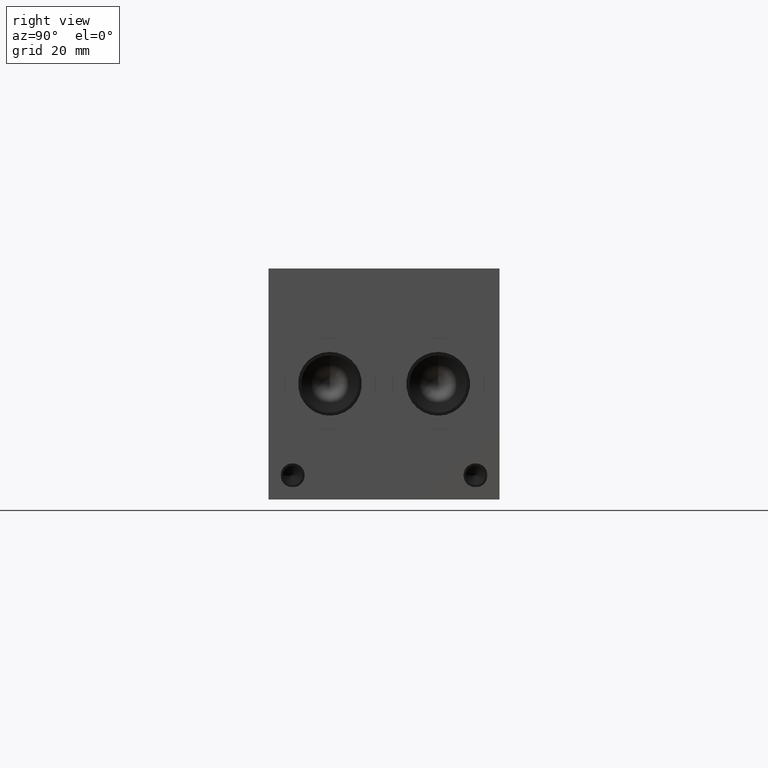
[diagram: clean part render]
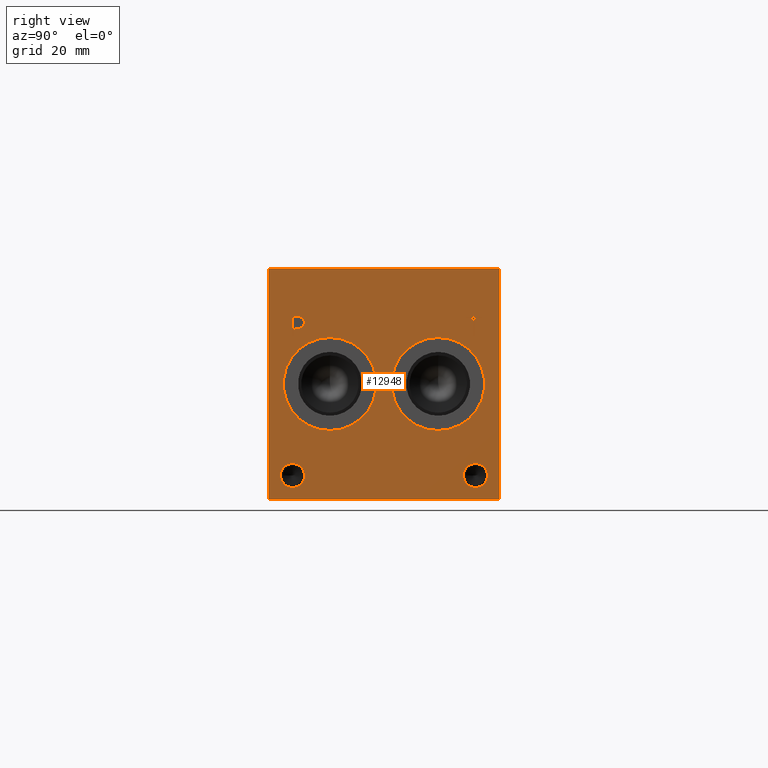
[diagram: same view with one face highlighted and labeled with its STEP entity id]
A machine part, right view. The second image highlights one B-rep face of the part: STEP entity #12948.
In plain terms, the highlighted planar face has unit normal (1, 0, 0).
Its self-contained STEP definition (entity closure, byte-faithful):
#205=CIRCLE('',#13590,15.3416);
#206=CIRCLE('',#13591,15.3416);
#207=CIRCLE('',#13592,3.9624);
#208=CIRCLE('',#13593,3.9624);
#481=FACE_BOUND('',#2197,.T.);
#482=FACE_BOUND('',#2198,.T.);
#483=FACE_BOUND('',#2199,.T.);
#484=FACE_BOUND('',#2200,.T.);
#485=FACE_BOUND('',#2201,.T.);
#486=FACE_BOUND('',#2202,.T.);
#801=B_SPLINE_CURVE_WITH_KNOTS('',2,(#20993,#20994,#20995,#20996),
 .UNSPECIFIED.,.F.,.F.,(3,1,3),(0.,1.,2.),.UNSPECIFIED.);
#803=B_SPLINE_CURVE_WITH_KNOTS('',2,(#21014,#21015,#21016,#21017),
 .UNSPECIFIED.,.F.,.F.,(3,1,3),(0.,1.,2.),.UNSPECIFIED.);
#805=B_SPLINE_CURVE_WITH_KNOTS('',2,(#21063,#21064,#21065,#21066),
 .UNSPECIFIED.,.F.,.F.,(3,1,3),(0.,1.,2.),.UNSPECIFIED.);
#807=B_SPLINE_CURVE_WITH_KNOTS('',2,(#21081,#21082,#21083,#21084),
 .UNSPECIFIED.,.F.,.F.,(3,1,3),(0.,1.,2.),.UNSPECIFIED.);
#1409=FACE_OUTER_BOUND('',#2196,.T.);
#2196=EDGE_LOOP('',(#10538,#10539,#10540,#10541));
#2197=EDGE_LOOP('',(#10542));
#2198=EDGE_LOOP('',(#10543));
#2199=EDGE_LOOP('',(#10544));
#2200=EDGE_LOOP('',(#10545));
#2201=EDGE_LOOP('',(#10546,#10547,#10548,#10549,#10550,#10551,#10552,#10553));
#2202=EDGE_LOOP('',(#10554,#10555,#10556,#10557,#10558,#10559,#10560,#10561,
#10562));
#2899=LINE('',#19417,#4181);
#3559=LINE('',#21026,#4841);
#3562=LINE('',#21032,#4844);
#3565=LINE('',#21038,#4847);
#3568=LINE('',#21044,#4850);
#3571=LINE('',#21050,#4853);
#3575=LINE('',#21092,#4857);
#3576=LINE('',#21094,#4858);
#3577=LINE('',#21095,#4859);
#3578=LINE('',#21106,#4860);
#3579=LINE('',#21108,#4861);
#3580=LINE('',#21110,#4862);
#3581=LINE('',#21112,#4863);
#3582=LINE('',#21114,#4864);
#3583=LINE('',#21116,#4865);
#3584=LINE('',#21118,#4866);
#3585=LINE('',#21119,#4867);
#4181=VECTOR('',#14591,10.);
#4841=VECTOR('',#15765,10.);
#4844=VECTOR('',#15770,10.);
#4847=VECTOR('',#15775,10.);
#4850=VECTOR('',#15780,10.);
#4853=VECTOR('',#15785,10.);
#4857=VECTOR('',#15793,10.);
#4858=VECTOR('',#15794,10.);
#4859=VECTOR('',#15795,10.);
#4860=VECTOR('',#15804,10.);
#4861=VECTOR('',#15805,10.);
#4862=VECTOR('',#15806,10.);
#4863=VECTOR('',#15807,10.);
#4864=VECTOR('',#15808,10.);
#4865=VECTOR('',#15809,10.);
#4866=VECTOR('',#15810,10.);
#4867=VECTOR('',#15811,10.);
#5485=VERTEX_POINT('',#19414);
#5486=VERTEX_POINT('',#19416);
#5948=VERTEX_POINT('',#20991);
#5949=VERTEX_POINT('',#20992);
#5952=VERTEX_POINT('',#21013);
#5954=VERTEX_POINT('',#21025);
#5956=VERTEX_POINT('',#21031);
#5958=VERTEX_POINT('',#21037);
#5960=VERTEX_POINT('',#21043);
#5962=VERTEX_POINT('',#21049);
#5964=VERTEX_POINT('',#21062);
#5966=VERTEX_POINT('',#21091);
#5967=VERTEX_POINT('',#21093);
#5968=VERTEX_POINT('',#21096);
#5969=VERTEX_POINT('',#21098);
#5970=VERTEX_POINT('',#21100);
#5971=VERTEX_POINT('',#21102);
#5972=VERTEX_POINT('',#21104);
#5973=VERTEX_POINT('',#21105);
#5974=VERTEX_POINT('',#21107);
#5975=VERTEX_POINT('',#21109);
#5976=VERTEX_POINT('',#21111);
#5977=VERTEX_POINT('',#21113);
#5978=VERTEX_POINT('',#21115);
#5979=VERTEX_POINT('',#21117);
#6843=EDGE_CURVE('',#5485,#5486,#2899,.T.);
#7532=EDGE_CURVE('',#5948,#5949,#801,.T.);
#7536=EDGE_CURVE('',#5952,#5948,#803,.T.);
#7539=EDGE_CURVE('',#5954,#5952,#3559,.T.);
#7542=EDGE_CURVE('',#5956,#5954,#3562,.T.);
#7545=EDGE_CURVE('',#5958,#5956,#3565,.T.);
#7548=EDGE_CURVE('',#5960,#5958,#3568,.T.);
#7551=EDGE_CURVE('',#5962,#5960,#3571,.T.);
#7554=EDGE_CURVE('',#5964,#5962,#805,.T.);
#7557=EDGE_CURVE('',#5949,#5964,#807,.T.);
#7559=EDGE_CURVE('',#5485,#5966,#3575,.T.);
#7560=EDGE_CURVE('',#5966,#5967,#3576,.T.);
#7561=EDGE_CURVE('',#5486,#5967,#3577,.T.);
#7562=EDGE_CURVE('',#5968,#5968,#205,.T.);
#7563=EDGE_CURVE('',#5969,#5969,#206,.T.);
#7564=EDGE_CURVE('',#5970,#5970,#207,.T.);
#7565=EDGE_CURVE('',#5971,#5971,#208,.T.);
#7566=EDGE_CURVE('',#5972,#5973,#3578,.T.);
#7567=EDGE_CURVE('',#5973,#5974,#3579,.T.);
#7568=EDGE_CURVE('',#5974,#5975,#3580,.T.);
#7569=EDGE_CURVE('',#5975,#5976,#3581,.T.);
#7570=EDGE_CURVE('',#5976,#5977,#3582,.T.);
#7571=EDGE_CURVE('',#5977,#5978,#3583,.T.);
#7572=EDGE_CURVE('',#5978,#5979,#3584,.T.);
#7573=EDGE_CURVE('',#5979,#5972,#3585,.T.);
#10538=ORIENTED_EDGE('',*,*,#7559,.T.);
#10539=ORIENTED_EDGE('',*,*,#7560,.T.);
#10540=ORIENTED_EDGE('',*,*,#7561,.F.);
#10541=ORIENTED_EDGE('',*,*,#6843,.F.);
#10542=ORIENTED_EDGE('',*,*,#7562,.T.);
#10543=ORIENTED_EDGE('',*,*,#7563,.T.);
#10544=ORIENTED_EDGE('',*,*,#7564,.T.);
#10545=ORIENTED_EDGE('',*,*,#7565,.T.);
#10546=ORIENTED_EDGE('',*,*,#7566,.T.);
#10547=ORIENTED_EDGE('',*,*,#7567,.T.);
#10548=ORIENTED_EDGE('',*,*,#7568,.T.);
#10549=ORIENTED_EDGE('',*,*,#7569,.T.);
#10550=ORIENTED_EDGE('',*,*,#7570,.T.);
#10551=ORIENTED_EDGE('',*,*,#7571,.T.);
#10552=ORIENTED_EDGE('',*,*,#7572,.T.);
#10553=ORIENTED_EDGE('',*,*,#7573,.T.);
#10554=ORIENTED_EDGE('',*,*,#7532,.T.);
#10555=ORIENTED_EDGE('',*,*,#7557,.T.);
#10556=ORIENTED_EDGE('',*,*,#7554,.T.);
#10557=ORIENTED_EDGE('',*,*,#7551,.T.);
#10558=ORIENTED_EDGE('',*,*,#7548,.T.);
#10559=ORIENTED_EDGE('',*,*,#7545,.T.);
#10560=ORIENTED_EDGE('',*,*,#7542,.T.);
#10561=ORIENTED_EDGE('',*,*,#7539,.T.);
#10562=ORIENTED_EDGE('',*,*,#7536,.T.);
#11929=PLANE('',#13589);
#12948=ADVANCED_FACE('',(#1409,#481,#482,#483,#484,#485,#486),#11929,.T.);
#13589=AXIS2_PLACEMENT_3D('',#21090,#15791,#15792);
#13590=AXIS2_PLACEMENT_3D('',#21097,#15796,#15797);
#13591=AXIS2_PLACEMENT_3D('',#21099,#15798,#15799);
#13592=AXIS2_PLACEMENT_3D('',#21101,#15800,#15801);
#13593=AXIS2_PLACEMENT_3D('',#21103,#15802,#15803);
#14591=DIRECTION('',(0.,0.,1.));
#15765=DIRECTION('',(0.,1.,0.));
#15770=DIRECTION('',(0.,0.,1.));
#15775=DIRECTION('',(0.,-1.,0.));
#15780=DIRECTION('',(0.,0.,-1.));
#15785=DIRECTION('',(0.,-1.,0.));
#15791=DIRECTION('center_axis',(1.,0.,0.));
#15792=DIRECTION('ref_axis',(0.,1.,0.));
#15793=DIRECTION('',(0.,1.,0.));
#15794=DIRECTION('',(0.,0.,1.));
#15795=DIRECTION('',(0.,1.,0.));
#15796=DIRECTION('center_axis',(-1.,0.,0.));
#15797=DIRECTION('ref_axis',(0.,0.,-1.));
#15798=DIRECTION('center_axis',(-1.,0.,0.));
#15799=DIRECTION('ref_axis',(0.,0.,-1.));
#15800=DIRECTION('center_axis',(-1.,0.,0.));
#15801=DIRECTION('ref_axis',(0.,1.,0.));
#15802=DIRECTION('center_axis',(-1.,0.,0.));
#15803=DIRECTION('ref_axis',(0.,1.,0.));
#15804=DIRECTION('',(0.,-1.,0.));
#15805=DIRECTION('',(0.,0.,1.));
#15806=DIRECTION('',(0.,-1.,0.));
#15807=DIRECTION('',(0.,0.,1.));
#15808=DIRECTION('',(0.,1.,0.));
#15809=DIRECTION('',(0.,0.,-1.));
#15810=DIRECTION('',(0.,-1.,0.));
#15811=DIRECTION('',(0.,0.,-1.));
#19414=CARTESIAN_POINT('',(215.9,0.,0.));
#19416=CARTESIAN_POINT('',(215.9,0.,76.2));
#19417=CARTESIAN_POINT('',(215.9,0.,0.));
#20991=CARTESIAN_POINT('',(215.9,11.0443172023594,59.9287681439707));
#20992=CARTESIAN_POINT('',(215.9,11.800759654532,58.410737372604));
#20993=CARTESIAN_POINT('Ctrl Pts',(215.9,11.0443172023594,59.9287681439707));
#20994=CARTESIAN_POINT('Ctrl Pts',(215.9,11.3993820268486,59.6869123939564));
#20995=CARTESIAN_POINT('Ctrl Pts',(215.9,11.800759654532,58.9407616758269));
#20996=CARTESIAN_POINT('Ctrl Pts',(215.9,11.800759654532,58.410737372604));
#21013=CARTESIAN_POINT('',(215.9,9.3822021543883,60.3249999046326));
#21014=CARTESIAN_POINT('Ctrl Pts',(215.9,9.3822021543883,60.3249999046326));
#21015=CARTESIAN_POINT('Ctrl Pts',(215.9,9.94824752676236,60.3249999046326));
#21016=CARTESIAN_POINT('Ctrl Pts',(215.9,10.740711048086,60.1397486918556));
#21017=CARTESIAN_POINT('Ctrl Pts',(215.9,11.0443172023594,59.9287681439707));
#21025=CARTESIAN_POINT('',(215.9,7.78698337769779,60.3249999046326));
#21026=CARTESIAN_POINT('',(215.9,3.89349168884889,60.3249999046326));
#21031=CARTESIAN_POINT('',(215.9,7.78698337769779,53.975));
#21032=CARTESIAN_POINT('',(215.9,7.78698337769779,26.9875));
#21037=CARTESIAN_POINT('',(215.9,8.63090556923729,53.975));
#21038=CARTESIAN_POINT('',(215.9,4.31545278461864,53.975));
#21043=CARTESIAN_POINT('',(215.9,8.63090556923729,56.3420988299279));
#21044=CARTESIAN_POINT('',(215.9,8.63090556923729,28.1710494149639));
#21049=CARTESIAN_POINT('',(215.9,9.34618108523723,56.3420988299279));
#21050=CARTESIAN_POINT('',(215.9,4.67309054261861,56.3420988299279));
#21062=CARTESIAN_POINT('',(215.9,11.2450060162011,57.0007698086904));
#21063=CARTESIAN_POINT('Ctrl Pts',(215.9,11.2450060162011,57.0007698086904));
#21064=CARTESIAN_POINT('Ctrl Pts',(215.9,10.9156705268198,56.6765801863307));
#21065=CARTESIAN_POINT('Ctrl Pts',(215.9,10.0254355320861,56.3420988299279));
#21066=CARTESIAN_POINT('Ctrl Pts',(215.9,9.34618108523723,56.3420988299279));
#21081=CARTESIAN_POINT('Ctrl Pts',(215.9,11.800759654532,58.410737372604));
#21082=CARTESIAN_POINT('Ctrl Pts',(215.9,11.800759654532,57.9990680108774));
#21083=CARTESIAN_POINT('Ctrl Pts',(215.9,11.5074452343018,57.2580631597695));
#21084=CARTESIAN_POINT('Ctrl Pts',(215.9,11.2450060162011,57.0007698086904));
#21090=CARTESIAN_POINT('Origin',(215.9,0.,0.));
#21091=CARTESIAN_POINT('',(215.9,76.2,0.));
#21092=CARTESIAN_POINT('',(215.9,0.,0.));
#21093=CARTESIAN_POINT('',(215.9,76.2,76.2));
#21094=CARTESIAN_POINT('',(215.9,76.2,0.));
#21095=CARTESIAN_POINT('',(215.9,0.,76.2));
#21096=CARTESIAN_POINT('',(215.9,55.9562,53.4416));
#21097=CARTESIAN_POINT('Origin',(215.9,55.9562,38.1));
#21098=CARTESIAN_POINT('',(215.9,20.2438,53.4416));
#21099=CARTESIAN_POINT('Origin',(215.9,20.2438,38.1));
#21100=CARTESIAN_POINT('',(215.9,3.9624,7.9248));
#21101=CARTESIAN_POINT('Origin',(215.9,7.9248,7.9248));
#21102=CARTESIAN_POINT('',(215.9,64.3128,7.9248));
#21103=CARTESIAN_POINT('Origin',(215.9,68.2752,7.9248));
#21104=CARTESIAN_POINT('',(215.9,68.056665271453,53.975));
#21105=CARTESIAN_POINT('',(215.9,67.2127430799135,53.975));
#21106=CARTESIAN_POINT('',(215.9,34.0283326357265,53.975));
#21107=CARTESIAN_POINT('',(215.9,67.2127430799135,59.5737033194816));
#21108=CARTESIAN_POINT('',(215.9,67.2127430799135,26.9875));
#21109=CARTESIAN_POINT('',(215.9,65.0823541329784,59.5737033194816));
#21110=CARTESIAN_POINT('',(215.9,33.6063715399567,59.5737033194816));
#21111=CARTESIAN_POINT('',(215.9,65.0823541329784,60.3249999046326));
#21112=CARTESIAN_POINT('',(215.9,65.0823541329784,29.7868516597408));
#21113=CARTESIAN_POINT('',(215.9,70.1870542183881,60.3249999046326));
#21114=CARTESIAN_POINT('',(215.9,32.5411770664892,60.3249999046326));
#21115=CARTESIAN_POINT('',(215.9,70.1870542183881,59.5737033194816));
#21116=CARTESIAN_POINT('',(215.9,70.1870542183881,30.1624999523163));
#21117=CARTESIAN_POINT('',(215.9,68.056665271453,59.5737033194816));
#21118=CARTESIAN_POINT('',(215.9,35.093527109194,59.5737033194816));
#21119=CARTESIAN_POINT('',(215.9,68.056665271453,29.7868516597408));